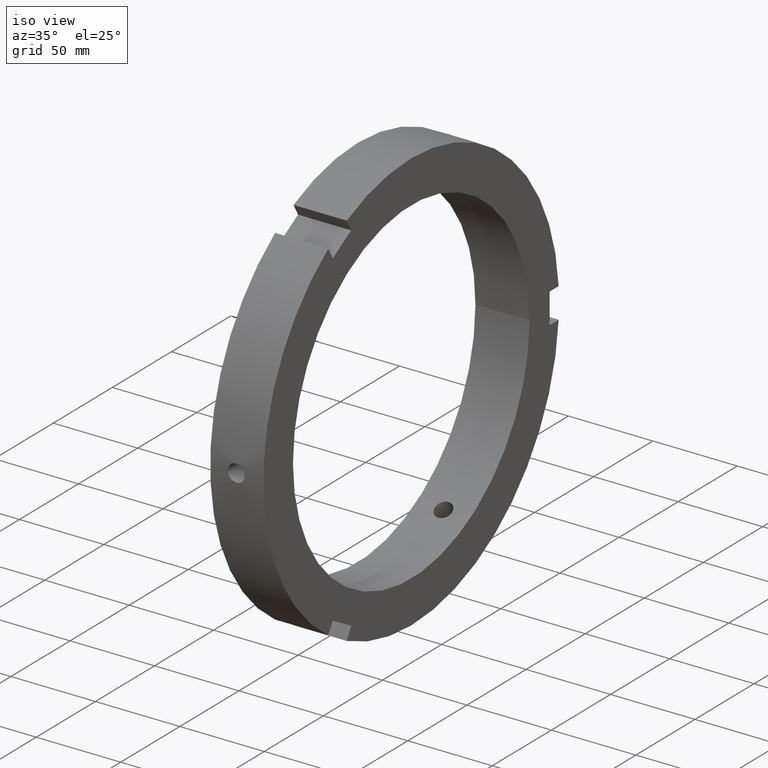
[diagram: clean part render]
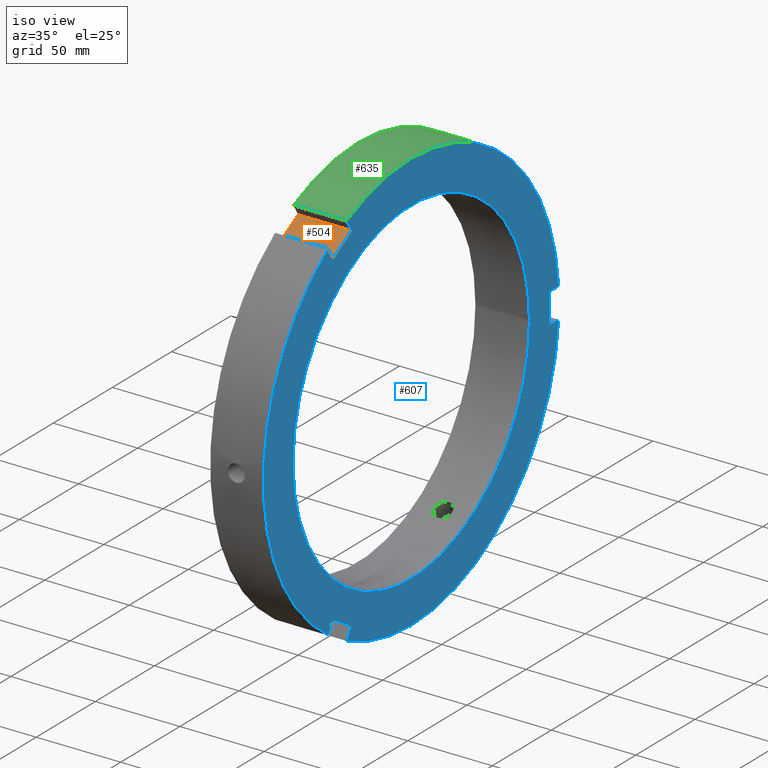
[diagram: same view with three faces highlighted in distinct colors, each labeled with its STEP entity id]
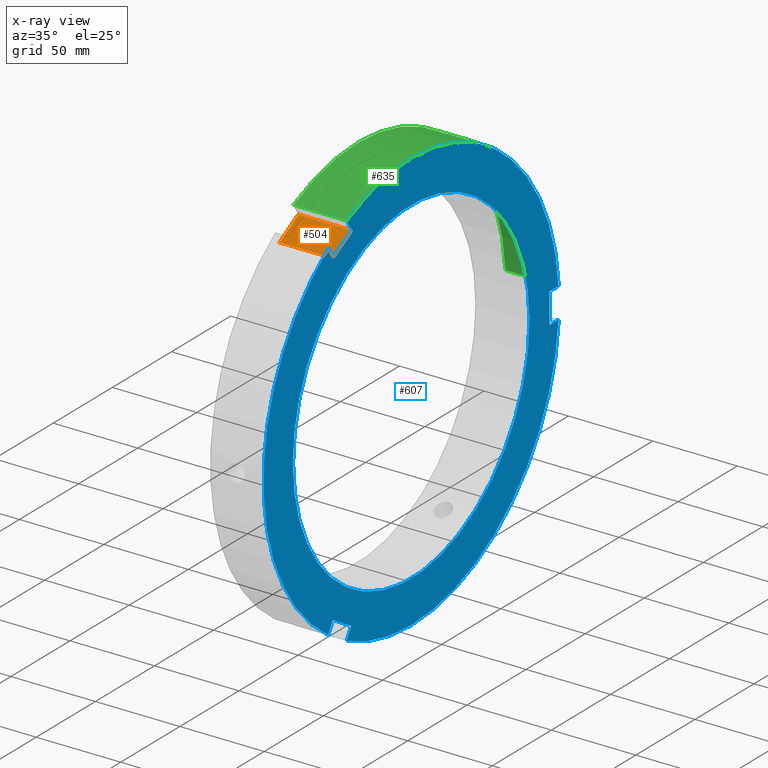
[diagram: x-ray of the same camera — body ghosted, the three highlighted faces saturated]
A machine part, iso view with three faces highlighted in distinct colors.
The next image is the same camera in x-ray (body ghosted, the three faces saturated) — at least one of them is partly hidden behind the body in this view.
Their STEP definitions:

[orange] entity #504 — the highlighted planar face has unit normal (0, 0.5, -0.866).
#439=CARTESIAN_POINT('',(0.499999999999963,-50.705771365940045,105.82497224277935));
#440=VERTEX_POINT('',#439);
#449=CARTESIAN_POINT('',(31.999999999999975,-50.705771365940045,105.82497224277935));
#450=VERTEX_POINT('',#449);
#451=CARTESIAN_POINT('',(31.999999999999975,-50.705771365940045,105.82497224277935));
#452=DIRECTION('',(-1.0,0.0,0.0));
#453=VECTOR('',#452,31.500000000000014);
#454=LINE('',#451,#453);
#455=EDGE_CURVE('',#450,#440,#454,.T.);
#474=CARTESIAN_POINT('',(31.999999999999975,-50.705771365940045,105.82497224277935));
#475=DIRECTION('',(0.0,0.5,-0.866025403784439));
#476=DIRECTION('',(0.0,-0.866025403784439,-0.5));
#477=AXIS2_PLACEMENT_3D('',#474,#475,#476);
#478=PLANE('',#477);
#479=CARTESIAN_POINT('',(0.499999999999963,-66.294228634059948,96.824972242779353));
#480=VERTEX_POINT('',#479);
#481=CARTESIAN_POINT('',(0.499999999999967,-66.294228634059948,96.824972242779339));
#482=DIRECTION('',(0.0,0.866025403784439,0.499999999999999));
#483=VECTOR('',#482,17.999999999999993);
#484=LINE('',#481,#483);
#485=EDGE_CURVE('',#480,#440,#484,.T.);
#486=ORIENTED_EDGE('',*,*,#485,.F.);
#487=CARTESIAN_POINT('',(31.999999999999975,-66.294228634059948,96.824972242779353));
#488=VERTEX_POINT('',#487);
#489=CARTESIAN_POINT('',(31.999999999999975,-66.294228634059948,96.824972242779353));
#490=DIRECTION('',(-1.0,0.0,0.0));
#491=VECTOR('',#490,31.500000000000014);
#492=LINE('',#489,#491);
#493=EDGE_CURVE('',#488,#480,#492,.T.);
#494=ORIENTED_EDGE('',*,*,#493,.F.);
#495=CARTESIAN_POINT('',(31.999999999999975,-50.705771365940052,105.82497224277935));
#496=DIRECTION('',(0.0,-0.866025403784439,-0.5));
#497=VECTOR('',#496,18.000000000000032);
#498=LINE('',#495,#497);
#499=EDGE_CURVE('',#450,#488,#498,.T.);
#500=ORIENTED_EDGE('',*,*,#499,.F.);
#501=ORIENTED_EDGE('',*,*,#455,.T.);
#502=EDGE_LOOP('',(#486,#494,#500,#501));
#503=FACE_OUTER_BOUND('',#502,.T.);
#504=ADVANCED_FACE('',(#503),#478,.F.);

[blue] entity #607 — the highlighted planar face has unit normal (1, 0, 0).
#347=CARTESIAN_POINT('',(31.999999999999975,-66.294228634060005,-96.82497224277931));
#348=VERTEX_POINT('',#347);
#355=CARTESIAN_POINT('',(31.999999999999975,-70.132018136094786,-103.47221864905804));
#356=VERTEX_POINT('',#355);
#357=CARTESIAN_POINT('',(31.999999999999975,-70.132018136094814,-103.47221864905805));
#358=DIRECTION('',(0.0,0.500000000000001,0.866025403784438));
#359=VECTOR('',#358,7.675579004069609);
#360=LINE('',#357,#359);
#361=EDGE_CURVE('',#356,#348,#360,.T.);
#385=CARTESIAN_POINT('',(31.999999999999975,-50.705771365940109,-105.82497224277932));
#386=VERTEX_POINT('',#385);
#393=CARTESIAN_POINT('',(31.999999999999975,-66.294228634060033,-96.824972242779324));
#394=DIRECTION('',(0.0,0.866025403784439,-0.5));
#395=VECTOR('',#394,18.000000000000018);
#396=LINE('',#393,#395);
#397=EDGE_CURVE('',#348,#386,#396,.T.);
#416=CARTESIAN_POINT('',(31.999999999999975,-54.54356086797489,-112.47221864905804));
#417=VERTEX_POINT('',#416);
#424=CARTESIAN_POINT('',(31.999999999999975,-50.705771365940123,-105.82497224277935));
#425=DIRECTION('',(0.0,-0.5,-0.866025403784439));
#426=VECTOR('',#425,7.675579004069557);
#427=LINE('',#424,#426);
#428=EDGE_CURVE('',#386,#417,#427,.T.);
#449=CARTESIAN_POINT('',(31.999999999999975,-50.705771365940045,105.82497224277935));
#450=VERTEX_POINT('',#449);
#457=CARTESIAN_POINT('',(31.999999999999975,-54.543560867974833,112.47221864905805));
#458=VERTEX_POINT('',#457);
#459=CARTESIAN_POINT('',(31.999999999999975,-54.543560867974847,112.47221864905805));
#460=DIRECTION('',(0.0,0.5,-0.866025403784439));
#461=VECTOR('',#460,7.675579004069557);
#462=LINE('',#459,#461);
#463=EDGE_CURVE('',#458,#450,#462,.T.);
#487=CARTESIAN_POINT('',(31.999999999999975,-66.294228634059948,96.824972242779353));
#488=VERTEX_POINT('',#487);
#495=CARTESIAN_POINT('',(31.999999999999975,-50.705771365940052,105.82497224277935));
#496=DIRECTION('',(0.0,-0.866025403784439,-0.5));
#497=VECTOR('',#496,18.000000000000032);
#498=LINE('',#495,#497);
#499=EDGE_CURVE('',#450,#488,#498,.T.);
#518=CARTESIAN_POINT('',(31.999999999999975,-70.132018136094729,103.47221864905805));
#519=VERTEX_POINT('',#518);
#526=CARTESIAN_POINT('',(31.999999999999975,-66.294228634059962,96.824972242779353));
#527=DIRECTION('',(0.0,-0.499999999999999,0.866025403784439));
#528=VECTOR('',#527,7.67557900406957);
#529=LINE('',#526,#528);
#530=EDGE_CURVE('',#488,#519,#529,.T.);
#536=CARTESIAN_POINT('',(31.999999999999975,112.5,0.0));
#537=DIRECTION('',(1.0,0.0,0.0));
#538=DIRECTION('',(0.0,0.0,-1.0));
#539=AXIS2_PLACEMENT_3D('',#536,#537,#538);
#540=PLANE('',#539);
#541=ORIENTED_EDGE('',*,*,#361,.T.);
#542=ORIENTED_EDGE('',*,*,#397,.T.);
#543=ORIENTED_EDGE('',*,*,#428,.T.);
#544=CARTESIAN_POINT('',(31.999999999999975,124.67557900406959,-8.999999999999984));
#545=VERTEX_POINT('',#544);
#546=CARTESIAN_POINT('',(31.999999999999975,0.0,0.0));
#547=DIRECTION('',(1.0,0.0,0.0));
#548=DIRECTION('',(0.0,1.0,0.0));
#549=AXIS2_PLACEMENT_3D('',#546,#547,#548);
#550=CIRCLE('',#549,125.0);
#551=EDGE_CURVE('',#417,#545,#550,.T.);
#552=ORIENTED_EDGE('',*,*,#551,.T.);
#553=CARTESIAN_POINT('',(31.999999999999975,117.00000000000001,-8.999999999999988));
#554=VERTEX_POINT('',#553);
#555=CARTESIAN_POINT('',(31.999999999999975,124.67557900406959,-8.999999999999984));
#556=DIRECTION('',(0.0,-1.0,0.0));
#557=VECTOR('',#556,7.675579004069576);
#558=LINE('',#555,#557);
#559=EDGE_CURVE('',#545,#554,#558,.T.);
#560=ORIENTED_EDGE('',*,*,#559,.T.);
#561=CARTESIAN_POINT('',(31.999999999999975,117.00000000000001,9.000000000000016));
#562=VERTEX_POINT('',#561);
#563=CARTESIAN_POINT('',(31.999999999999975,117.00000000000003,-8.999999999999988));
#564=DIRECTION('',(0.0,0.0,1.0));
#565=VECTOR('',#564,18.000000000000007);
#566=LINE('',#563,#565);
#567=EDGE_CURVE('',#554,#562,#566,.T.);
#568=ORIENTED_EDGE('',*,*,#567,.T.);
#569=CARTESIAN_POINT('',(31.999999999999975,124.67557900406959,9.000000000000016));
#570=VERTEX_POINT('',#569);
#571=CARTESIAN_POINT('',(31.999999999999975,117.00000000000001,9.000000000000016));
#572=DIRECTION('',(0.0,1.0,0.0));
#573=VECTOR('',#572,7.675579004069576);
#574=LINE('',#571,#573);
#575=EDGE_CURVE('',#562,#570,#574,.T.);
#576=ORIENTED_EDGE('',*,*,#575,.T.);
#577=CARTESIAN_POINT('',(31.999999999999975,0.0,0.0));
#578=DIRECTION('',(1.0,0.0,0.0));
#579=DIRECTION('',(0.0,1.0,0.0));
#580=AXIS2_PLACEMENT_3D('',#577,#578,#579);
#581=CIRCLE('',#580,125.0);
#582=EDGE_CURVE('',#570,#458,#581,.T.);
#583=ORIENTED_EDGE('',*,*,#582,.T.);
#584=ORIENTED_EDGE('',*,*,#463,.T.);
#585=ORIENTED_EDGE('',*,*,#499,.T.);
#586=ORIENTED_EDGE('',*,*,#530,.T.);
#587=CARTESIAN_POINT('',(31.999999999999975,0.0,0.0));
#588=DIRECTION('',(1.0,0.0,0.0));
#589=DIRECTION('',(0.0,1.0,0.0));
#590=AXIS2_PLACEMENT_3D('',#587,#588,#589);
#591=CIRCLE('',#590,125.0);
#592=EDGE_CURVE('',#519,#356,#591,.T.);
#593=ORIENTED_EDGE('',*,*,#592,.T.);
#594=EDGE_LOOP('',(#541,#542,#543,#552,#560,#568,#576,#583,#584,#585,#586,#593));
#595=FACE_OUTER_BOUND('',#594,.T.);
#596=CARTESIAN_POINT('',(31.999999999999979,100.0,0.0));
#597=VERTEX_POINT('',#596);
#598=CARTESIAN_POINT('',(31.999999999999979,0.0,0.0));
#599=DIRECTION('',(1.0,0.0,0.0));
#600=DIRECTION('',(0.0,1.0,0.0));
#601=AXIS2_PLACEMENT_3D('',#598,#599,#600);
#602=CIRCLE('',#601,100.0);
#603=EDGE_CURVE('',#597,#597,#602,.T.);
#604=ORIENTED_EDGE('',*,*,#603,.F.);
#605=EDGE_LOOP('',(#604));
#606=FACE_BOUND('',#605,.T.);
#607=ADVANCED_FACE('',(#595,#606),#540,.T.);

[green] entity #635 — the highlighted cylindrical surface (partial cylindrical patch) has radius 125 mm, axis along (1, 0, 0).
#73=CARTESIAN_POINT('',(15.999999999999975,66.799823805904879,105.65407488355604));
#74=VERTEX_POINT('',#73);
#75=CARTESIAN_POINT('',(15.999999999999975,66.799823805904865,105.65407488355604));
#76=CARTESIAN_POINT('',(16.634539898765915,66.799823805904865,105.65407488355604));
#77=CARTESIAN_POINT('',(17.311328175890797,66.692639806818789,105.72208082410461));
#78=CARTESIAN_POINT('',(18.556263846837638,66.255606156496384,105.99651518313765));
#79=CARTESIAN_POINT('',(19.124417048440161,65.925621242383059,106.20270178079448));
#80=CARTESIAN_POINT('',(20.021609249121362,65.16134981881541,106.67333261011693));
#81=CARTESIAN_POINT('',(20.410476452290453,64.676076732797313,106.96912009274152));
#82=CARTESIAN_POINT('',(20.926173719096191,63.607415453230338,107.60801203591141));
#83=CARTESIAN_POINT('',(21.052999999999969,63.023884439497088,107.95088062767005));
#84=CARTESIAN_POINT('',(21.05299999999998,61.924678049597063,108.58515963331965));
#85=CARTESIAN_POINT('',(20.926172027311864,61.335816936191634,108.9188005909576));
#86=CARTESIAN_POINT('',(20.410471918155388,60.247892729625015,109.52433055282179));
#87=CARTESIAN_POINT('',(20.021603653115172,59.748962345568103,109.79646125430671));
#88=CARTESIAN_POINT('',(19.124412178461192,58.959038589527125,110.2226527198965));
#89=CARTESIAN_POINT('',(18.556261137858222,58.615392390216819,110.40517358820146));
#90=CARTESIAN_POINT('',(17.311328183428717,58.159087048186457,110.64622530330053));
#91=CARTESIAN_POINT('',(16.634540372385892,58.046569781148861,110.70499418112185));
#92=CARTESIAN_POINT('',(15.365459627614053,58.046569781148861,110.70499418112185));
#93=CARTESIAN_POINT('',(14.68867181657123,58.159087048186457,110.64622530330053));
#94=CARTESIAN_POINT('',(13.443738862141728,58.615392390216819,110.40517358820146));
#95=CARTESIAN_POINT('',(12.875587821538756,58.959038589527125,110.2226527198965));
#96=CARTESIAN_POINT('',(11.978396346884779,59.748962345568103,109.79646125430671));
#97=CARTESIAN_POINT('',(11.589528081844557,60.247892729625022,109.52433055282179));
#98=CARTESIAN_POINT('',(11.073827972688084,61.335816936191627,108.9188005909576));
#99=CARTESIAN_POINT('',(10.946999999999969,61.924678049597055,108.58515963331965));
#100=CARTESIAN_POINT('',(10.946999999999978,63.023884439497088,107.95088062767005));
#101=CARTESIAN_POINT('',(11.073826280903749,63.607415453230345,107.60801203591141));
#102=CARTESIAN_POINT('',(11.589523547709497,64.676076732797327,106.96912009274151));
#103=CARTESIAN_POINT('',(11.978390750878582,65.16134981881541,106.67333261011694));
#104=CARTESIAN_POINT('',(12.875582951559785,65.925621242383059,106.20270178079448));
#105=CARTESIAN_POINT('',(13.443736153162311,66.255606156496384,105.99651518313765));
#106=CARTESIAN_POINT('',(14.688671824109152,66.692639806818789,105.72208082410461));
#107=CARTESIAN_POINT('',(15.365460101234031,66.799823805904865,105.65407488355604));
#108=CARTESIAN_POINT('',(15.999999999999972,66.799823805904865,105.65407488355604));
#109=B_SPLINE_CURVE_WITH_KNOTS('',3,(#75,#76,#77,#78,#79,#80,#81,#82,#83,#84,#85,#86,#87,#88,#89,#90,#91,#92,#93,#94,#95,#96,#97,#98,#99,#100,#101,#102,#103,#104,#105,#106,#107,#108),.UNSPECIFIED.,.T.,.U.,(4,2,2,2,2,2,2,2,2,2,2,2,2,2,2,2,4),(0.0,0.190361969629782,0.380723939259564,0.571085258675598,0.761446578091632,0.951809317561347,1.142172057031061,1.332534168746837,1.522896280462613,1.71325839217839,1.903620503894165,2.09398324336388,2.284345982833595,2.474707302249628,2.665068621665663,2.855430591295445,3.045792560925227),.UNSPECIFIED.);
#110=EDGE_CURVE('',#74,#74,#109,.T.);
#441=CARTESIAN_POINT('',(0.499999999999963,-54.543560867974833,112.47221864905805));
#442=VERTEX_POINT('',#441);
#457=CARTESIAN_POINT('',(31.999999999999975,-54.543560867974833,112.47221864905805));
#458=VERTEX_POINT('',#457);
#465=CARTESIAN_POINT('',(0.499999999999964,-54.543560867974833,112.47221864905805));
#466=DIRECTION('',(1.0,0.0,0.0));
#467=VECTOR('',#466,31.500000000000014);
#468=LINE('',#465,#467);
#469=EDGE_CURVE('',#442,#458,#468,.T.);
#569=CARTESIAN_POINT('',(31.999999999999975,124.67557900406959,9.000000000000016));
#570=VERTEX_POINT('',#569);
#577=CARTESIAN_POINT('',(31.999999999999975,0.0,0.0));
#578=DIRECTION('',(1.0,0.0,0.0));
#579=DIRECTION('',(0.0,1.0,0.0));
#580=AXIS2_PLACEMENT_3D('',#577,#578,#579);
#581=CIRCLE('',#580,125.0);
#582=EDGE_CURVE('',#570,#458,#581,.T.);
#608=CARTESIAN_POINT('',(16.249999999999968,0.0,0.0));
#609=DIRECTION('',(1.0,0.0,0.0));
#610=DIRECTION('',(0.0,1.0,0.0));
#611=AXIS2_PLACEMENT_3D('',#608,#609,#610);
#612=CYLINDRICAL_SURFACE('',#611,125.0);
#613=ORIENTED_EDGE('',*,*,#469,.T.);
#614=ORIENTED_EDGE('',*,*,#582,.F.);
#615=CARTESIAN_POINT('',(0.499999999999963,124.67557900406959,9.000000000000016));
#616=VERTEX_POINT('',#615);
#617=CARTESIAN_POINT('',(31.999999999999979,124.67557900406959,9.000000000000016));
#618=DIRECTION('',(-1.0,0.0,0.0));
#619=VECTOR('',#618,31.500000000000014);
#620=LINE('',#617,#619);
#621=EDGE_CURVE('',#570,#616,#620,.T.);
#622=ORIENTED_EDGE('',*,*,#621,.T.);
#623=CARTESIAN_POINT('',(0.499999999999963,0.0,0.0));
#624=DIRECTION('',(1.0,0.0,0.0));
#625=DIRECTION('',(0.0,1.0,0.0));
#626=AXIS2_PLACEMENT_3D('',#623,#624,#625);
#627=CIRCLE('',#626,125.0);
#628=EDGE_CURVE('',#616,#442,#627,.T.);
#629=ORIENTED_EDGE('',*,*,#628,.T.);
#630=EDGE_LOOP('',(#613,#614,#622,#629));
#631=FACE_OUTER_BOUND('',#630,.T.);
#632=ORIENTED_EDGE('',*,*,#110,.T.);
#633=EDGE_LOOP('',(#632));
#634=FACE_BOUND('',#633,.T.);
#635=ADVANCED_FACE('',(#631,#634),#612,.T.);